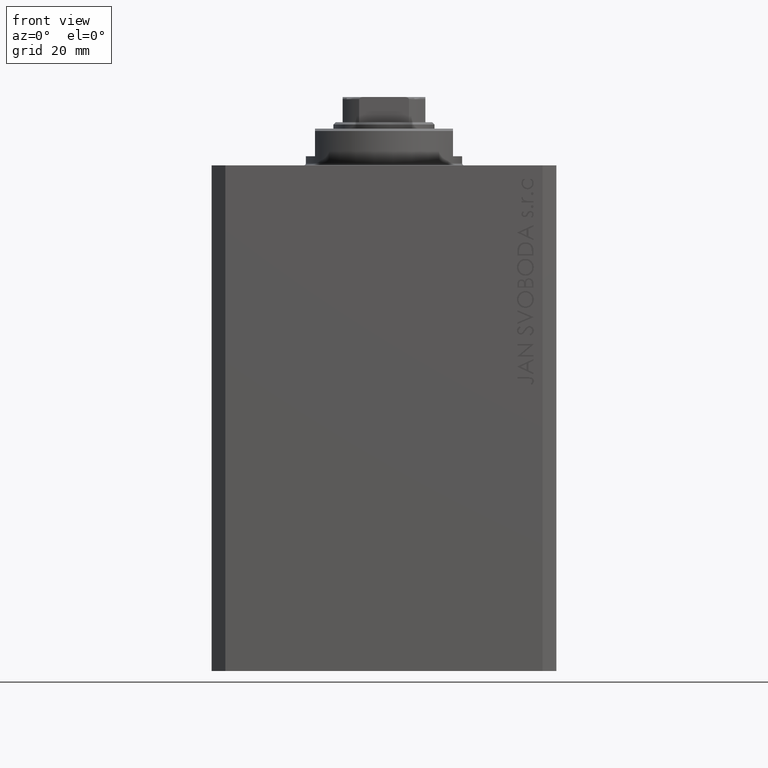
[diagram: clean part render]
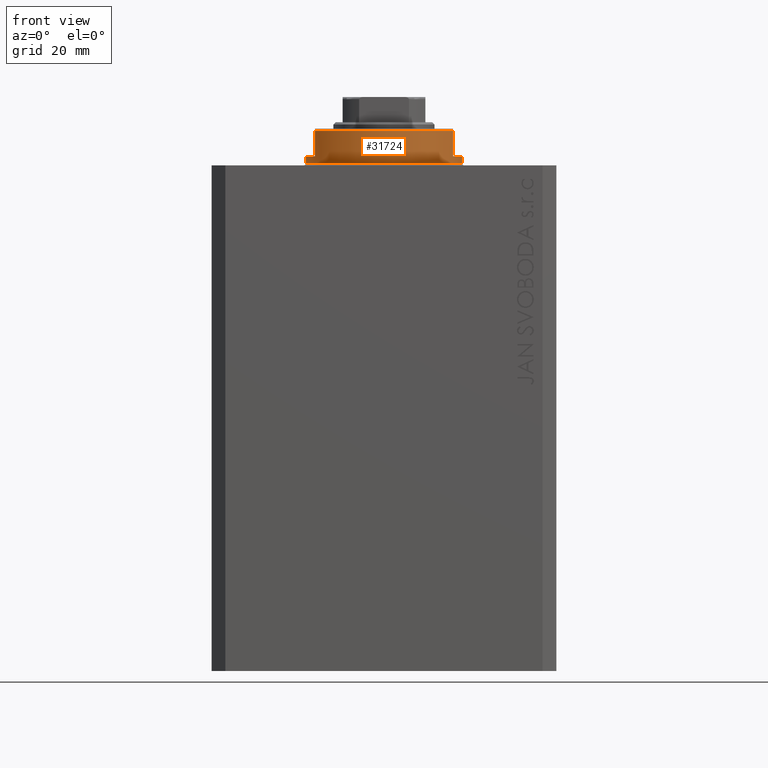
[diagram: same view with one face highlighted and labeled with its STEP entity id]
A machine part, front view. The second image highlights one B-rep face of the part: STEP entity #31724.
In plain terms, the highlighted cylindrical surface (partial cylindrical patch) has radius 17 mm, axis along (0, 0, -1).
Its self-contained STEP definition (entity closure, byte-faithful):
#481 = ORIENTED_EDGE ( 'NONE', *, *, #11302, .T. ) ;
#809 = VERTEX_POINT ( 'NONE', #2118 ) ;
#963 = CARTESIAN_POINT ( 'NONE',  ( -15.00000000000000000, -8.000000000000001776, -8.000000000000000000 ) ) ;
#2118 = CARTESIAN_POINT ( 'NONE',  ( -17.00000000000000000, 2.081899558550500280E-15, -2.000000000000000000 ) ) ;
#2627 = DIRECTION ( 'NONE',  ( -0.000000000000000000, -0.000000000000000000, -1.000000000000000000 ) ) ;
#2906 = FACE_OUTER_BOUND ( 'NONE', #22738, .T. ) ;
#3467 = CARTESIAN_POINT ( 'NONE',  ( -17.00000000000000000, 2.081899558550500280E-15, -8.000000000000000000 ) ) ;
#3559 = ORIENTED_EDGE ( 'NONE', *, *, #3687, .T. ) ;
#3578 = EDGE_CURVE ( 'NONE', #31088, #809, #4317, .T. ) ;
#3687 = EDGE_CURVE ( 'NONE', #14821, #46321, #24178, .T. ) ;
#3784 = VECTOR ( 'NONE', #18054, 1000.000000000000000 ) ;
#4300 = VECTOR ( 'NONE', #25787, 1000.000000000000000 ) ;
#4317 = CIRCLE ( 'NONE', #44071, 17.00000000000000000 ) ;
#4385 = CARTESIAN_POINT ( 'NONE',  ( 0.000000000000000000, 0.000000000000000000, -2.000000000000000000 ) ) ;
#5778 = DIRECTION ( 'NONE',  ( -0.000000000000000000, -0.000000000000000000, 1.000000000000000000 ) ) ;
#7743 = DIRECTION ( 'NONE',  ( -1.000000000000000000, 0.000000000000000000, 0.000000000000000000 ) ) ;
#9022 = VERTEX_POINT ( 'NONE', #34902 ) ;
#9219 = ORIENTED_EDGE ( 'NONE', *, *, #35651, .F. ) ;
#9305 = LINE ( 'NONE', #963, #28247 ) ;
#9840 = CARTESIAN_POINT ( 'NONE',  ( 0.000000000000000000, 0.000000000000000000, -8.000000000000000000 ) ) ;
#10029 = DIRECTION ( 'NONE',  ( -1.000000000000000000, 0.000000000000000000, 0.000000000000000000 ) ) ;
#10155 = LINE ( 'NONE', #28353, #28199 ) ;
#10512 = CARTESIAN_POINT ( 'NONE',  ( 0.000000000000000000, 0.000000000000000000, -0.5000000000000004441 ) ) ;
#11302 = EDGE_CURVE ( 'NONE', #31088, #14821, #9305, .T. ) ;
#14167 = EDGE_CURVE ( 'NONE', #46654, #9022, #44410, .T. ) ;
#14821 = VERTEX_POINT ( 'NONE', #16501 ) ;
#15542 = DIRECTION ( 'NONE',  ( 0.000000000000000000, 0.000000000000000000, -1.000000000000000000 ) ) ;
#16501 = CARTESIAN_POINT ( 'NONE',  ( -15.00000000000000000, -8.000000000000001776, -7.500000000000014211 ) ) ;
#17887 = LINE ( 'NONE', #18602, #4300 ) ;
#17976 = CARTESIAN_POINT ( 'NONE',  ( -17.00000000000000000, 2.081899558550500280E-15, -0.5000000000000004441 ) ) ;
#18054 = DIRECTION ( 'NONE',  ( -0.000000000000000000, -0.000000000000000000, 1.000000000000000000 ) ) ;
#18602 = CARTESIAN_POINT ( 'NONE',  ( 15.00000000000000000, -8.000000000000001776, -8.000000000000000000 ) ) ;
#19218 = DIRECTION ( 'NONE',  ( 0.000000000000000000, 0.000000000000000000, -1.000000000000000000 ) ) ;
#19383 = EDGE_CURVE ( 'NONE', #46654, #38998, #10155, .T. ) ;
#21079 = CYLINDRICAL_SURFACE ( 'NONE', #42508, 17.00000000000000000 ) ;
#22738 = EDGE_LOOP ( 'NONE', ( #41526, #30840, #481, #3559, #9219, #23850, #42989, #33123 ) ) ;
#23008 = CARTESIAN_POINT ( 'NONE',  ( 17.00000000000000000, 0.000000000000000000, -2.000000000000000000 ) ) ;
#23622 = VERTEX_POINT ( 'NONE', #17976 ) ;
#23850 = ORIENTED_EDGE ( 'NONE', *, *, #14167, .F. ) ;
#24178 = CIRCLE ( 'NONE', #43278, 17.00000000000000000 ) ;
#24548 = EDGE_CURVE ( 'NONE', #38998, #23622, #39238, .T. ) ;
#24879 = DIRECTION ( 'NONE',  ( 1.000000000000000000, 0.000000000000000000, 0.000000000000000000 ) ) ;
#25483 = LINE ( 'NONE', #3467, #3784 ) ;
#25787 = DIRECTION ( 'NONE',  ( 0.000000000000000000, 0.000000000000000000, -1.000000000000000000 ) ) ;
#26872 = CARTESIAN_POINT ( 'NONE',  ( 17.00000000000000000, 0.000000000000000000, -0.5000000000000004441 ) ) ;
#28199 = VECTOR ( 'NONE', #36015, 1000.000000000000000 ) ;
#28247 = VECTOR ( 'NONE', #15542, 1000.000000000000000 ) ;
#28353 = CARTESIAN_POINT ( 'NONE',  ( 17.00000000000000000, 0.000000000000000000, -8.000000000000000000 ) ) ;
#28610 = CARTESIAN_POINT ( 'NONE',  ( -14.99999999999999645, -8.000000000000003553, -2.000000000000000000 ) ) ;
#30840 = ORIENTED_EDGE ( 'NONE', *, *, #3578, .F. ) ;
#31088 = VERTEX_POINT ( 'NONE', #28610 ) ;
#31624 = DIRECTION ( 'NONE',  ( 1.000000000000000000, 0.000000000000000000, 0.000000000000000000 ) ) ;
#31724 = ADVANCED_FACE ( 'NONE', ( #2906 ), #21079, .T. ) ;
#33123 = ORIENTED_EDGE ( 'NONE', *, *, #24548, .T. ) ;
#33847 = CARTESIAN_POINT ( 'NONE',  ( 15.00000000000000000, -8.000000000000001776, -7.500000000000013323 ) ) ;
#33951 = DIRECTION ( 'NONE',  ( -1.000000000000000000, 0.000000000000000000, 0.000000000000000000 ) ) ;
#34902 = CARTESIAN_POINT ( 'NONE',  ( 14.99999999999999645, -8.000000000000003553, -2.000000000000000000 ) ) ;
#35651 = EDGE_CURVE ( 'NONE', #9022, #46321, #17887, .T. ) ;
#36015 = DIRECTION ( 'NONE',  ( -0.000000000000000000, -0.000000000000000000, 1.000000000000000000 ) ) ;
#36121 = CARTESIAN_POINT ( 'NONE',  ( 0.000000000000000000, 0.000000000000000000, -2.000000000000000000 ) ) ;
#38998 = VERTEX_POINT ( 'NONE', #26872 ) ;
#39238 = CIRCLE ( 'NONE', #42313, 17.00000000000000000 ) ;
#41526 = ORIENTED_EDGE ( 'NONE', *, *, #47029, .F. ) ;
#41831 = DIRECTION ( 'NONE',  ( 0.000000000000000000, 0.000000000000000000, 1.000000000000000000 ) ) ;
#42292 = CARTESIAN_POINT ( 'NONE',  ( 0.000000000000000000, 0.000000000000000000, -7.500000000000013323 ) ) ;
#42313 = AXIS2_PLACEMENT_3D ( 'NONE', #10512, #2627, #24879 ) ;
#42508 = AXIS2_PLACEMENT_3D ( 'NONE', #9840, #5778, #31624 ) ;
#42989 = ORIENTED_EDGE ( 'NONE', *, *, #19383, .T. ) ;
#43278 = AXIS2_PLACEMENT_3D ( 'NONE', #42292, #41831, #33951 ) ;
#44071 = AXIS2_PLACEMENT_3D ( 'NONE', #36121, #46664, #10029 ) ;
#44410 = CIRCLE ( 'NONE', #44441, 17.00000000000000000 ) ;
#44441 = AXIS2_PLACEMENT_3D ( 'NONE', #4385, #19218, #7743 ) ;
#46321 = VERTEX_POINT ( 'NONE', #33847 ) ;
#46654 = VERTEX_POINT ( 'NONE', #23008 ) ;
#46664 = DIRECTION ( 'NONE',  ( 0.000000000000000000, 0.000000000000000000, -1.000000000000000000 ) ) ;
#47029 = EDGE_CURVE ( 'NONE', #809, #23622, #25483, .T. ) ;